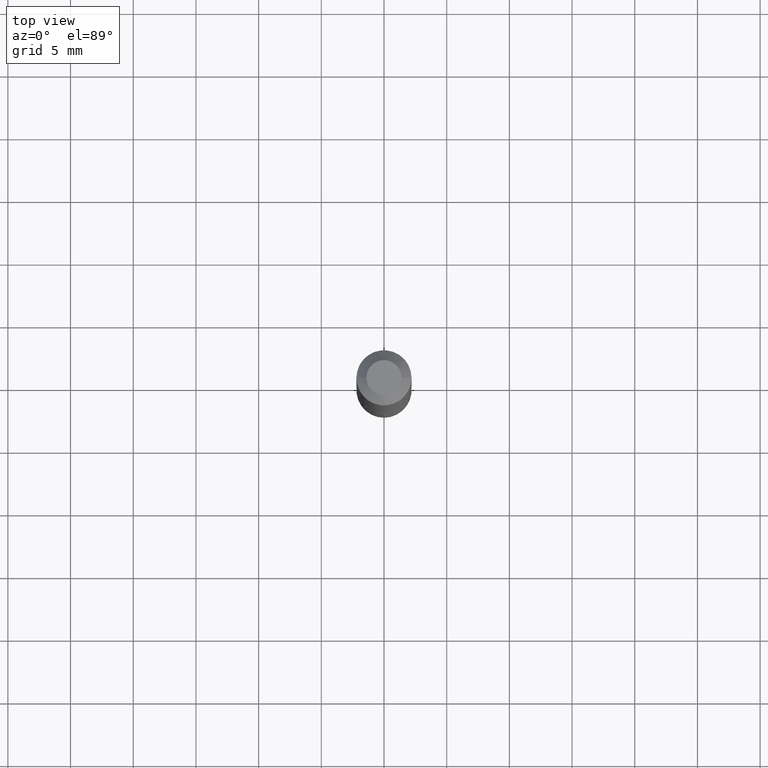
[diagram: clean part render]
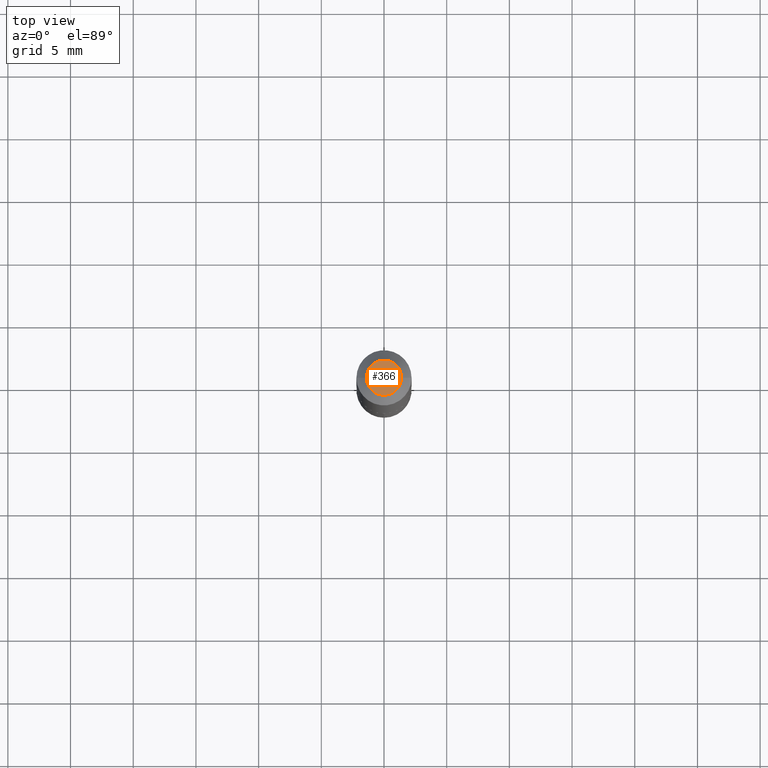
[diagram: same view with one face highlighted and labeled with its STEP entity id]
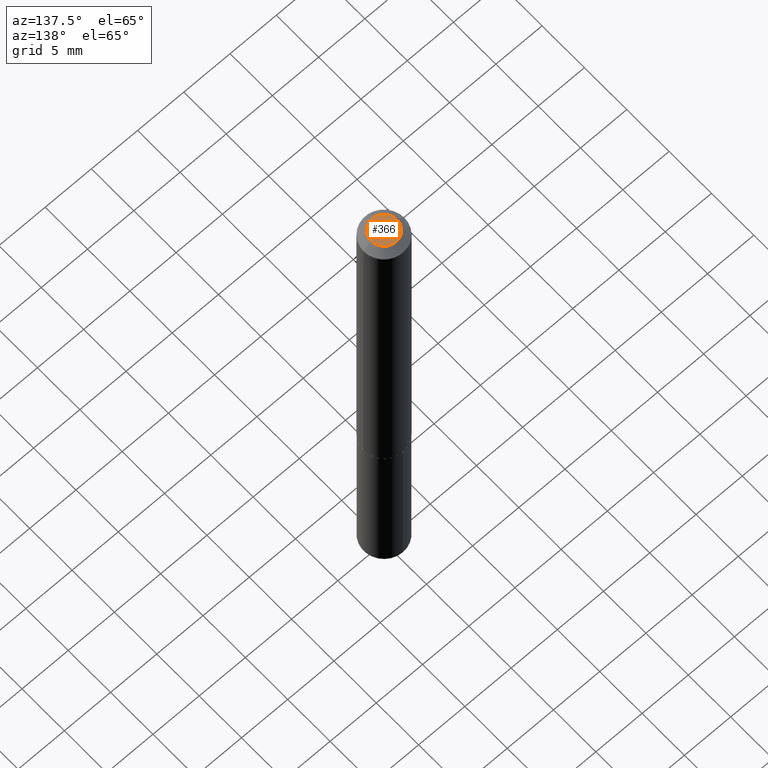
[diagram: same view with one face highlighted and labeled with its STEP entity id]
A machine part, top view. The second image highlights one B-rep face of the part: STEP entity #366.
A second angle (auxiliary view) of the same face is appended — the face is thin or edge-on in the first view.
In plain terms, the highlighted planar face has unit normal (0, -0, -1).
Its self-contained STEP definition (entity closure, byte-faithful):
#95 = DIRECTION ( 'NONE',  ( -1.000000000000000000, 6.982962677686265922E-15, -4.876176775795935793E-29 ) ) ;
#98 = CARTESIAN_POINT ( 'NONE',  ( -2.919964657261559142E-48, 4.168935659749500181E-34, 1.194030629168655274E-19 ) ) ;
#101 = DIRECTION ( 'NONE',  ( -2.445468806185136597E-29, 3.491481338843145583E-15, 1.000000000000000000 ) ) ;
#119 = CARTESIAN_POINT ( 'NONE',  ( 0.05534999999999998949, -5.414782413112588911E-16, 2.388061258369751875E-19 ) ) ;
#126 = DIRECTION ( 'NONE',  ( 2.438088387897960049E-29, -3.491481338843145188E-15, -1.000000000000000000 ) ) ;
#133 = VERTEX_POINT ( 'NONE', #119 ) ;
#139 = ORIENTED_EDGE ( 'NONE', *, *, #189, .T. ) ;
#150 = CIRCLE ( 'NONE', #223, 0.05534999999999998949 ) ;
#164 = VERTEX_POINT ( 'NONE', #365 ) ;
#189 = EDGE_CURVE ( 'NONE', #164, #133, #210, .T. ) ;
#210 = CIRCLE ( 'NONE', #311, 0.05534999999999998949 ) ;
#217 = DIRECTION ( 'NONE',  ( 1.000000000000000000, -6.982962677686266711E-15, 4.876151470398592516E-29 ) ) ;
#223 = AXIS2_PLACEMENT_3D ( 'NONE', #254, #101, #226 ) ;
#226 = DIRECTION ( 'NONE',  ( 1.000000000000000000, -6.982962677686266711E-15, 4.876151470398592516E-29 ) ) ;
#254 = CARTESIAN_POINT ( 'NONE',  ( -5.839929314523118284E-48, 8.337871319499000362E-34, 2.388061258337310548E-19 ) ) ;
#284 = FACE_OUTER_BOUND ( 'NONE', #316, .T. ) ;
#285 = ORIENTED_EDGE ( 'NONE', *, *, #354, .T. ) ;
#311 = AXIS2_PLACEMENT_3D ( 'NONE', #364, #331, #217 ) ;
#316 = EDGE_LOOP ( 'NONE', ( #139, #285 ) ) ;
#331 = DIRECTION ( 'NONE',  ( -2.445468806185136597E-29, 3.491481338843145583E-15, 1.000000000000000000 ) ) ;
#354 = EDGE_CURVE ( 'NONE', #133, #164, #150, .T. ) ;
#364 = CARTESIAN_POINT ( 'NONE',  ( -5.839929314523118284E-48, 8.337871319499000362E-34, 2.388061258337310548E-19 ) ) ;
#365 = CARTESIAN_POINT ( 'NONE',  ( -0.05534999999999998949, 4.410613801293581608E-16, 2.388061258308374895E-19 ) ) ;
#366 = ADVANCED_FACE ( 'NONE', ( #284 ), #375, .F. ) ;
#374 = AXIS2_PLACEMENT_3D ( 'NONE', #98, #126, #95 ) ;
#375 = PLANE ( 'NONE',  #374 ) ;